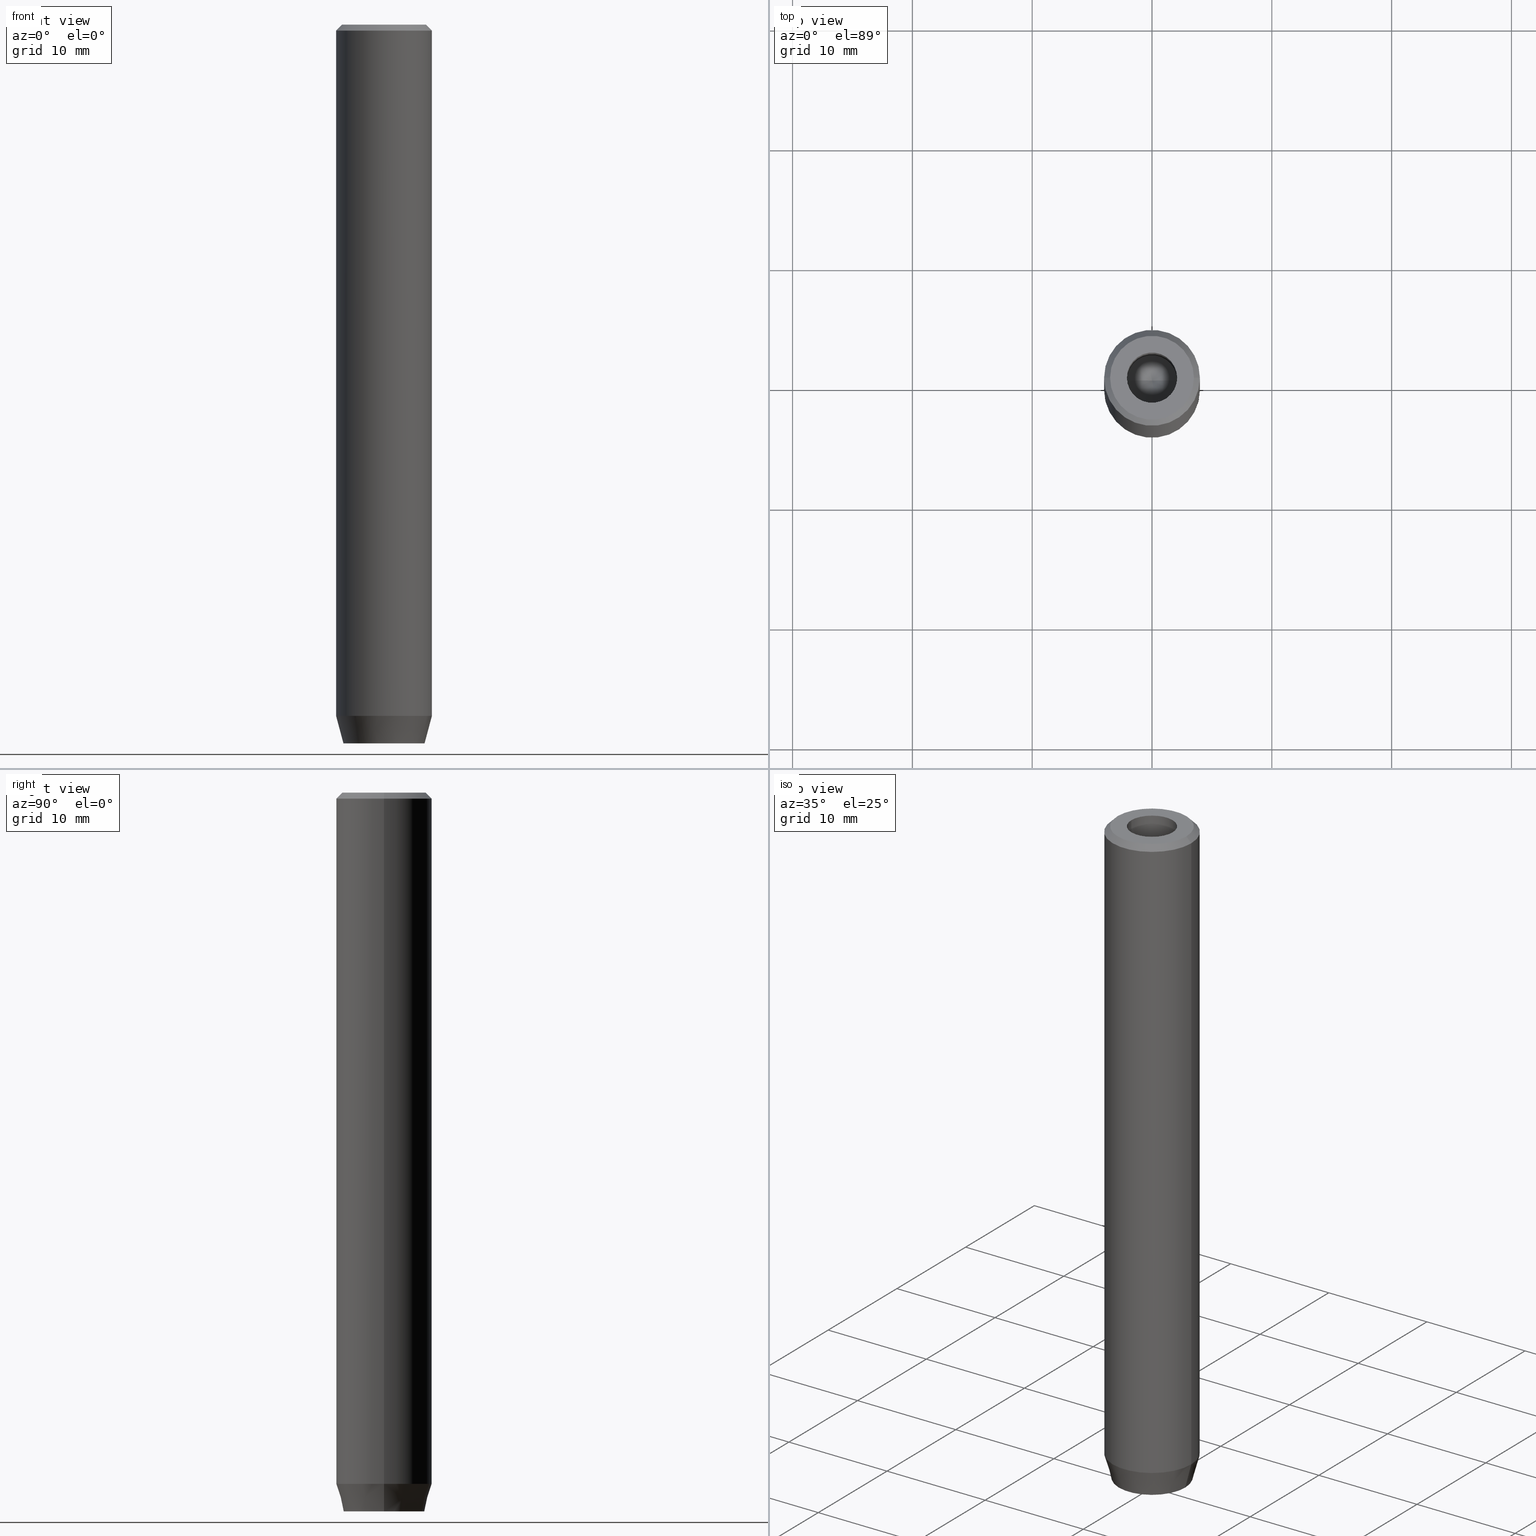
[diagram: canonical four-view strip — front | top / right | iso, engineering-drawing reading convention]
A machine part, canonical four-view strip (front | top / right | iso — engineering-drawing reading convention). The complete STEP part file that produces these views, byte-faithful:
ISO-10303-21;
HEADER;
FILE_DESCRIPTION (( 'STEP AP203' ),
    '1' );
FILE_NAME ('21f6.STEP',
    '2024-01-02T23:09:26',
    ( '' ),
    ( '' ),
    'SwSTEP 2.0',
    'SolidWorks 2019',
    '' );
FILE_SCHEMA (( 'CONFIG_CONTROL_DESIGN' ));
ENDSEC;

DATA;
#1 = CARTESIAN_POINT ( 'NONE',  ( -3.370670652075219192E-15, 0.000000000000000000, -13.76180729995787644 ) ) ;
#2 = APPROVAL_DATE_TIME ( #226, #495 ) ;
#3 = ADVANCED_FACE ( 'NONE', ( #320 ), #145, .T. ) ;
#4 = PRODUCT ( '21f6', '21f6', '', ( #101 ) ) ;
#5 = ORIENTED_EDGE ( 'NONE', *, *, #276, .T. ) ;
#6 = CALENDAR_DATE ( 2024, 3, 1 ) ;
#7 = VECTOR ( 'NONE', #229, 1000.000000000000000 ) ;
#8 = LINE ( 'NONE', #192, #59 ) ;
#9 = EDGE_CURVE ( 'NONE', #119, #16, #488, .T. ) ;
#10 = CC_DESIGN_PERSON_AND_ORGANIZATION_ASSIGNMENT ( #443, #585, ( #306 ) ) ;
#11 = DIRECTION ( 'NONE',  ( -0.000000000000000000, -0.000000000000000000, -1.000000000000000000 ) ) ;
#12 = CARTESIAN_POINT ( 'NONE',  ( 2.000000000000000888, 0.000000000000000000, -57.20000000000000284 ) ) ;
#13 = DIRECTION ( 'NONE',  ( -0.5000000000000001110, 0.8660254037844385966, 0.000000000000000000 ) ) ;
#14 = CARTESIAN_POINT ( 'NONE',  ( 2.168404344971008868E-16, -2.309401076758503812, -60.00000000000000000 ) ) ;
#15 = DIRECTION ( 'NONE',  ( 0.000000000000000000, 0.000000000000000000, -1.000000000000000000 ) ) ;
#16 = VERTEX_POINT ( 'NONE', #87 ) ;
#17 = DIRECTION ( 'NONE',  ( -0.000000000000000000, 0.000000000000000000, -1.000000000000000000 ) ) ;
#18 = ORIENTED_EDGE ( 'NONE', *, *, #237, .F. ) ;
#19 = DIRECTION ( 'NONE',  ( -0.000000000000000000, -0.000000000000000000, 1.000000000000000000 ) ) ;
#20 = EDGE_LOOP ( 'NONE', ( #305, #250, #76, #85 ) ) ;
#21 = APPROVAL_ROLE ( '' ) ;
#22 = CIRCLE ( 'NONE', #309, 3.500000000000003109 ) ;
#23 = EDGE_CURVE ( 'NONE', #383, #32, #179, .T. ) ;
#24 = CARTESIAN_POINT ( 'NONE',  ( 0.000000000000000000, 0.000000000000000000, -57.70000000000000284 ) ) ;
#25 = VERTEX_POINT ( 'NONE', #553 ) ;
#26 = ORIENTED_EDGE ( 'NONE', *, *, #53, .T. ) ;
#27 = FACE_OUTER_BOUND ( 'NONE', #395, .T. ) ;
#28 = DIRECTION ( 'NONE',  ( -0.000000000000000000, -0.000000000000000000, 1.000000000000000000 ) ) ;
#29 = ADVANCED_FACE ( 'NONE', ( #451 ), #147, .T. ) ;
#30 = DIRECTION ( 'NONE',  ( 1.000000000000000000, 0.000000000000000000, 0.000000000000000000 ) ) ;
#31 = ORIENTED_EDGE ( 'NONE', *, *, #537, .F. ) ;
#32 = VERTEX_POINT ( 'NONE', #38 ) ;
#33 = VECTOR ( 'NONE', #514, 1000.000000000000114 ) ;
#34 = CARTESIAN_POINT ( 'NONE',  ( 0.000000000000000000, 0.000000000000000000, 0.000000000000000000 ) ) ;
#35 = EDGE_LOOP ( 'NONE', ( #233, #417, #265, #441 ) ) ;
#36 = CARTESIAN_POINT ( 'NONE',  ( -2.099999999999998757, 2.571758278209439985E-16, -1.990051048614449116E-16 ) ) ;
#37 = ORIENTED_EDGE ( 'NONE', *, *, #158, .F. ) ;
#38 = CARTESIAN_POINT ( 'NONE',  ( 2.099999999999996980, 0.000000000000000000, -12.50000000000000000 ) ) ;
#39 = AXIS2_PLACEMENT_3D ( 'NONE', #246, #457, #293 ) ;
#40 = VERTEX_POINT ( 'NONE', #1 ) ;
#41 = PLANE ( 'NONE',  #362 ) ;
#42 = ORIENTED_EDGE ( 'NONE', *, *, #505, .T. ) ;
#43 = DIRECTION ( 'NONE',  ( -0.000000000000000000, -0.000000000000000000, 1.000000000000000000 ) ) ;
#44 = CC_DESIGN_PERSON_AND_ORGANIZATION_ASSIGNMENT ( #277, #216, ( #468 ) ) ;
#45 = CARTESIAN_POINT ( 'NONE',  ( -3.500000000000003109, 0.000000000000000000, 0.000000000000000000 ) ) ;
#46 = COORDINATED_UNIVERSAL_TIME_OFFSET ( 1, 0, .AHEAD. ) ;
#47 = FACE_OUTER_BOUND ( 'NONE', #146, .T. ) ;
#48 = DIRECTION ( 'NONE',  ( 1.000000000000000000, 0.000000000000000000, 0.000000000000000000 ) ) ;
#49 = PLANE ( 'NONE',  #352 ) ;
#50 = EDGE_CURVE ( 'NONE', #269, #63, #316, .T. ) ;
#51 = DIRECTION ( 'NONE',  ( -0.000000000000000000, -0.000000000000000000, -1.000000000000000000 ) ) ;
#52 = VECTOR ( 'NONE', #485, 999.9999999999998863 ) ;
#53 = EDGE_CURVE ( 'NONE', #254, #139, #283, .T. ) ;
#54 = DIRECTION ( 'NONE',  ( -0.8571673007021116675, 1.049727191138617833E-16, 0.5150380749100552658 ) ) ;
#55 = CARTESIAN_POINT ( 'NONE',  ( 0.000000000000000000, 0.000000000000000000, -0.4999999999999970024 ) ) ;
#56 = COORDINATED_UNIVERSAL_TIME_OFFSET ( 1, 0, .AHEAD. ) ;
#57 = DIRECTION ( 'NONE',  ( 0.8660254037844388186, 0.4999999999999996669, 0.000000000000000000 ) ) ;
#58 = EDGE_LOOP ( 'NONE', ( #116, #481, #153 ) ) ;
#59 = VECTOR ( 'NONE', #392, 1000.000000000000000 ) ;
#60 = EDGE_CURVE ( 'NONE', #420, #63, #325, .T. ) ;
#61 = VERTEX_POINT ( 'NONE', #45 ) ;
#62 = CARTESIAN_POINT ( 'NONE',  ( 0.000000000000000000, 0.000000000000000000, -60.00000000000000000 ) ) ;
#63 = VERTEX_POINT ( 'NONE', #508 ) ;
#64 = ADVANCED_FACE ( 'NONE', ( #98 ), #548, .F. ) ;
#65 = CARTESIAN_POINT ( 'NONE',  ( 0.000000000000000000, 3.383716857408417766, -60.00000000000000000 ) ) ;
#66 = ORIENTED_EDGE ( 'NONE', *, *, #154, .F. ) ;
#67 = EDGE_LOOP ( 'NONE', ( #359, #435, #66, #334 ) ) ;
#68 = VECTOR ( 'NONE', #447, 1000.000000000000000 ) ;
#69 = EDGE_CURVE ( 'NONE', #119, #385, #159, .T. ) ;
#70 = ORGANIZATION ( 'NEUR�EN�', 'NEUR�EN�', '' ) ;
#71 = CARTESIAN_POINT ( 'NONE',  ( 0.000000000000000000, 0.000000000000000000, -57.70000000000000284 ) ) ;
#72 = DIRECTION ( 'NONE',  ( -0.000000000000000000, -0.000000000000000000, 1.000000000000000000 ) ) ;
#73 = ORIENTED_EDGE ( 'NONE', *, *, #530, .F. ) ;
#74 = DIRECTION ( 'NONE',  ( 1.000000000000000000, 0.000000000000000000, 0.000000000000000000 ) ) ;
#75 = ADVANCED_FACE ( 'NONE', ( #372 ), #337, .F. ) ;
#76 = ORIENTED_EDGE ( 'NONE', *, *, #291, .F. ) ;
#77 = DIRECTION ( 'NONE',  ( -0.000000000000000000, -0.000000000000000000, 1.000000000000000000 ) ) ;
#78 = VECTOR ( 'NONE', #298, 1000.000000000000000 ) ;
#79 = CIRCLE ( 'NONE', #39, 2.099999999999998757 ) ;
#80 = VERTEX_POINT ( 'NONE', #239 ) ;
#81 = DATE_TIME_ROLE ( 'creation_date' ) ;
#82 = EDGE_CURVE ( 'NONE', #16, #119, #232, .T. ) ;
#83 = DIRECTION ( 'NONE',  ( -0.7071067811865474617, 0.000000000000000000, -0.7071067811865474617 ) ) ;
#84 = DIRECTION ( 'NONE',  ( 1.000000000000000000, 0.000000000000000000, 0.000000000000000000 ) ) ;
#85 = ORIENTED_EDGE ( 'NONE', *, *, #188, .F. ) ;
#86 = EDGE_CURVE ( 'NONE', #464, #182, #161, .T. ) ;
#87 = CARTESIAN_POINT ( 'NONE',  ( 3.383716857408417766, 0.000000000000000000, -60.00000000000000000 ) ) ;
#88 = VECTOR ( 'NONE', #539, 1000.000000000000000 ) ;
#89 = DIRECTION ( 'NONE',  ( -0.000000000000000000, -0.000000000000000000, -1.000000000000000000 ) ) ;
#90 = FACE_OUTER_BOUND ( 'NONE', #128, .T. ) ;
#91 = PERSON_AND_ORGANIZATION_ROLE ( 'creator' ) ;
#92 = ADVANCED_FACE ( 'NONE', ( #244 ), #415, .F. ) ;
#93 = DIRECTION ( 'NONE',  ( -0.000000000000000000, -0.000000000000000000, 1.000000000000000000 ) ) ;
#94 = DATE_TIME_ROLE ( 'classification_date' ) ;
#95 = CARTESIAN_POINT ( 'NONE',  ( 2.000000000000000888, -1.154700538379252572, -57.20000000000000284 ) ) ;
#96 = VERTEX_POINT ( 'NONE', #470 ) ;
#97 = AXIS2_PLACEMENT_3D ( 'NONE', #399, #546, #405 ) ;
#98 = FACE_OUTER_BOUND ( 'NONE', #58, .T. ) ;
#99 = CIRCLE ( 'NONE', #367, 2.099999999999998757 ) ;
#100 = VECTOR ( 'NONE', #183, 1000.000000000000000 ) ;
#101 = MECHANICAL_CONTEXT ( 'NONE', #163, 'mechanical' ) ;
#102 = DIRECTION ( 'NONE',  ( 0.8660254037844385966, -0.4999999999999999445, 0.000000000000000000 ) ) ;
#103 = ORIENTED_EDGE ( 'NONE', *, *, #344, .F. ) ;
#104 = EDGE_CURVE ( 'NONE', #541, #480, #369, .T. ) ;
#105 = CARTESIAN_POINT ( 'NONE',  ( -4.000000000000000000, 4.898587196589412829E-16, -57.70000000000000284 ) ) ;
#106 = FACE_OUTER_BOUND ( 'NONE', #363, .T. ) ;
#107 = EDGE_LOOP ( 'NONE', ( #572, #423, #584, #528 ) ) ;
#108 = VECTOR ( 'NONE', #205, 1000.000000000000000 ) ;
#109 = CARTESIAN_POINT ( 'NONE',  ( 0.9999999999999997780, -1.732050807568878747, -57.20000000000000284 ) ) ;
#110 = AXIS2_PLACEMENT_3D ( 'NONE', #409, #13, #290 ) ;
#111 = LOCAL_TIME ( 0, 9, 26.00000000000000000, #184 ) ;
#112 = DIRECTION ( 'NONE',  ( 1.000000000000000000, 0.000000000000000000, 0.000000000000000000 ) ) ;
#113 = ORIENTED_EDGE ( 'NONE', *, *, #458, .T. ) ;
#114 = DIRECTION ( 'NONE',  ( 0.8660254037844385966, 0.5000000000000001110, 0.000000000000000000 ) ) ;
#115 = CARTESIAN_POINT ( 'NONE',  ( 4.000000000000000000, 0.000000000000000000, -57.70000000000000284 ) ) ;
#116 = ORIENTED_EDGE ( 'NONE', *, *, #505, .F. ) ;
#117 = COORDINATED_UNIVERSAL_TIME_OFFSET ( 1, 0, .AHEAD. ) ;
#118 = EDGE_CURVE ( 'NONE', #471, #182, #268, .T. ) ;
#119 = VERTEX_POINT ( 'NONE', #272 ) ;
#120 = CARTESIAN_POINT ( 'NONE',  ( 1.000000000000000444, 1.732050807568877637, -60.00000000000000000 ) ) ;
#121 = APPLICATION_PROTOCOL_DEFINITION ( 'international standard', 'config_control_design', 1994, #401 ) ;
#122 = FACE_OUTER_BOUND ( 'NONE', #245, .T. ) ;
#123 = CONICAL_SURFACE ( 'NONE', #444, 4.000000000000000000, 0.2617993877991497964 ) ;
#124 = ORIENTED_EDGE ( 'NONE', *, *, #463, .T. ) ;
#125 = CARTESIAN_POINT ( 'NONE',  ( -1.000000000000000222, -1.732050807568877637, -60.00000000000000000 ) ) ;
#126 = LINE ( 'NONE', #388, #532 ) ;
#127 = EDGE_CURVE ( 'NONE', #80, #61, #489, .T. ) ;
#128 = EDGE_LOOP ( 'NONE', ( #520, #42, #474 ) ) ;
#129 = PLANE ( 'NONE',  #264 ) ;
#130 = VECTOR ( 'NONE', #11, 1000.000000000000000 ) ;
#131 = VECTOR ( 'NONE', #83, 1000.000000000000114 ) ;
#132 = ORIENTED_EDGE ( 'NONE', *, *, #344, .T. ) ;
#133 = DATE_AND_TIME ( #308, #111 ) ;
#134 = CARTESIAN_POINT ( 'NONE',  ( 1.000000000000000444, 1.732050807568877637, -57.20000000000000284 ) ) ;
#135 = CARTESIAN_POINT ( 'NONE',  ( 1.000000000000000444, 1.732050807568877637, -57.20000000000000284 ) ) ;
#136 = CARTESIAN_POINT ( 'NONE',  ( 0.000000000000000000, 0.000000000000000000, -12.50000000000000000 ) ) ;
#137 = DIRECTION ( 'NONE',  ( 0.5000000000000001110, 0.8660254037844385966, -0.000000000000000000 ) ) ;
#138 = CC_DESIGN_DATE_AND_TIME_ASSIGNMENT ( #156, #94, ( #404 ) ) ;
#139 = VERTEX_POINT ( 'NONE', #348 ) ;
#140 = APPROVAL_ROLE ( '' ) ;
#141 = LINE ( 'NONE', #275, #455 ) ;
#142 = CONICAL_SURFACE ( 'NONE', #425, 3.500000000000003109, 0.7853981633974482790 ) ;
#143 = CONICAL_SURFACE ( 'NONE', #191, 4.000000000000000000, 0.2617993877991497964 ) ;
#144 = FACE_OUTER_BOUND ( 'NONE', #432, .T. ) ;
#145 = CYLINDRICAL_SURFACE ( 'NONE', #351, 4.000000000000000000 ) ;
#146 = EDGE_LOOP ( 'NONE', ( #5, #208, #341, #525, #484, #581 ) ) ;
#147 = CYLINDRICAL_SURFACE ( 'NONE', #386, 4.000000000000000000 ) ;
#148 = PERSON_AND_ORGANIZATION ( #278, #70 ) ;
#149 = APPLICATION_PROTOCOL_DEFINITION ( 'international standard', 'config_control_design', 1994, #163 ) ;
#150 = CIRCLE ( 'NONE', #206, 4.000000000000000000 ) ;
#151 = DIRECTION ( 'NONE',  ( -0.8660254037844388186, -0.4999999999999996114, 0.000000000000000000 ) ) ;
#152 = EDGE_LOOP ( 'NONE', ( #210, #559, #242, #302 ) ) ;
#153 = ORIENTED_EDGE ( 'NONE', *, *, #23, .T. ) ;
#154 = EDGE_CURVE ( 'NONE', #420, #254, #299, .T. ) ;
#155 = FACE_OUTER_BOUND ( 'NONE', #231, .T. ) ;
#156 = DATE_AND_TIME ( #240, #413 ) ;
#157 =( NAMED_UNIT ( * ) SI_UNIT ( $, .STERADIAN. ) SOLID_ANGLE_UNIT ( ) );
#158 = EDGE_CURVE ( 'NONE', #25, #492, #99, .T. ) ;
#159 = LINE ( 'NONE', #105, #33 ) ;
#160 = EDGE_LOOP ( 'NONE', ( #37, #350 ) ) ;
#161 = CIRCLE ( 'NONE', #221, 4.000000000000000000 ) ;
#162 = ORIENTED_EDGE ( 'NONE', *, *, #340, .F. ) ;
#163 = APPLICATION_CONTEXT ( 'configuration controlled 3d designs of mechanical parts and assemblies' ) ;
#164 = DIRECTION ( 'NONE',  ( 1.000000000000000000, 0.000000000000000000, 0.000000000000000000 ) ) ;
#165 = EDGE_CURVE ( 'NONE', #322, #269, #396, .T. ) ;
#166 = ORIENTED_EDGE ( 'NONE', *, *, #86, .F. ) ;
#167 = EDGE_LOOP ( 'NONE', ( #18, #570, #113, #103 ) ) ;
#168 = ORIENTED_EDGE ( 'NONE', *, *, #127, .T. ) ;
#169 = EDGE_CURVE ( 'NONE', #480, #560, #196, .T. ) ;
#170 = AXIS2_PLACEMENT_3D ( 'NONE', #251, #433, #30 ) ;
#171 = ORIENTED_EDGE ( 'NONE', *, *, #237, .T. ) ;
#172 = ADVANCED_FACE ( 'NONE', ( #557 ), #142, .T. ) ;
#173 = ORIENTED_EDGE ( 'NONE', *, *, #118, .F. ) ;
#174 = DIRECTION ( 'NONE',  ( 1.000000000000000000, 0.000000000000000000, 0.000000000000000000 ) ) ;
#175 = ADVANCED_FACE ( 'NONE', ( #90 ), #512, .F. ) ;
#176 = EDGE_LOOP ( 'NONE', ( #461, #379, #397, #173 ) ) ;
#177 = PERSON_AND_ORGANIZATION ( #278, #70 ) ;
#178 = FACE_OUTER_BOUND ( 'NONE', #67, .T. ) ;
#179 = CIRCLE ( 'NONE', #579, 2.099999999999996980 ) ;
#180 = DIRECTION ( 'NONE',  ( 0.8660254037844385966, -0.5000000000000001110, 0.000000000000000000 ) ) ;
#181 = AXIS2_PLACEMENT_3D ( 'NONE', #294, #72, #164 ) ;
#182 = VERTEX_POINT ( 'NONE', #469 ) ;
#183 = DIRECTION ( 'NONE',  ( 5.633679745264339711E-16, 1.000000000000000000, 0.000000000000000000 ) ) ;
#184 = COORDINATED_UNIVERSAL_TIME_OFFSET ( 1, 0, .AHEAD. ) ;
#185 = CARTESIAN_POINT ( 'NONE',  ( 2.168404344971008868E-16, -2.309401076758503812, -57.20000000000000284 ) ) ;
#186 = CARTESIAN_POINT ( 'NONE',  ( 0.000000000000000000, 0.000000000000000000, 0.000000000000000000 ) ) ;
#187 = CARTESIAN_POINT ( 'NONE',  ( 0.000000000000000000, 0.000000000000000000, -12.50000000000000000 ) ) ;
#188 = EDGE_CURVE ( 'NONE', #16, #471, #211, .T. ) ;
#189 = CONICAL_SURFACE ( 'NONE', #564, 3.500000000000003109, 0.7853981633974482790 ) ;
#190 = ORIENTED_EDGE ( 'NONE', *, *, #537, .T. ) ;
#191 = AXIS2_PLACEMENT_3D ( 'NONE', #317, #353, #357 ) ;
#192 = CARTESIAN_POINT ( 'NONE',  ( 2.099999999999996980, 0.000000000000000000, -12.50000000000000000 ) ) ;
#193 = DIRECTION ( 'NONE',  ( 1.000000000000000000, 0.000000000000000000, 0.000000000000000000 ) ) ;
#194 = CARTESIAN_POINT ( 'NONE',  ( 2.000000000000000888, -1.154700538379252572, -60.00000000000000000 ) ) ;
#195 = LINE ( 'NONE', #510, #253 ) ;
#196 = LINE ( 'NONE', #407, #130 ) ;
#197 = DIRECTION ( 'NONE',  ( 1.000000000000000000, 0.000000000000000000, 0.000000000000000000 ) ) ;
#198 = VECTOR ( 'NONE', #419, 1000.000000000000114 ) ;
#199 =( GEOMETRIC_REPRESENTATION_CONTEXT ( 3 ) GLOBAL_UNCERTAINTY_ASSIGNED_CONTEXT ( ( #286 ) ) GLOBAL_UNIT_ASSIGNED_CONTEXT ( ( #236, #452, #157 ) ) REPRESENTATION_CONTEXT ( 'NONE', 'WORKASPACE' ) );
#200 = CARTESIAN_POINT ( 'NONE',  ( -1.999999999999998668, -1.154700538379252572, -57.20000000000000284 ) ) ;
#201 = DIRECTION ( 'NONE',  ( -1.000000000000000000, 0.000000000000000000, 0.000000000000000000 ) ) ;
#202 = LINE ( 'NONE', #287, #582 ) ;
#203 = CARTESIAN_POINT ( 'NONE',  ( 2.000000000000000888, 1.154700538379251462, -57.20000000000000284 ) ) ;
#204 = ORIENTED_EDGE ( 'NONE', *, *, #23, .F. ) ;
#205 = DIRECTION ( 'NONE',  ( -0.000000000000000000, -0.000000000000000000, -1.000000000000000000 ) ) ;
#206 = AXIS2_PLACEMENT_3D ( 'NONE', #519, #28, #257 ) ;
#207 = VECTOR ( 'NONE', #151, 1000.000000000000114 ) ;
#208 = ORIENTED_EDGE ( 'NONE', *, *, #154, .T. ) ;
#209 = LINE ( 'NONE', #125, #52 ) ;
#210 = ORIENTED_EDGE ( 'NONE', *, *, #340, .T. ) ;
#211 = LINE ( 'NONE', #115, #252 ) ;
#212 = ORIENTED_EDGE ( 'NONE', *, *, #127, .F. ) ;
#213 = CC_DESIGN_PERSON_AND_ORGANIZATION_ASSIGNMENT ( #177, #509, ( #404 ) ) ;
#214 = VECTOR ( 'NONE', #551, 1000.000000000000000 ) ;
#215 = CC_DESIGN_SECURITY_CLASSIFICATION ( #404, ( #468 ) ) ;
#216 = PERSON_AND_ORGANIZATION_ROLE ( 'design_supplier' ) ;
#217 = DIRECTION ( 'NONE',  ( 1.000000000000000000, 0.000000000000000000, 0.000000000000000000 ) ) ;
#218 = EDGE_CURVE ( 'NONE', #385, #471, #150, .T. ) ;
#219 = ADVANCED_FACE ( 'NONE', ( #155 ), #123, .T. ) ;
#220 = CARTESIAN_POINT ( 'NONE',  ( -3.500000000000003109, 0.000000000000000000, 0.000000000000000000 ) ) ;
#221 = AXIS2_PLACEMENT_3D ( 'NONE', #55, #238, #248 ) ;
#222 = ORIENTED_EDGE ( 'NONE', *, *, #273, .T. ) ;
#223 = CARTESIAN_POINT ( 'NONE',  ( 2.099999999999997868, 0.000000000000000000, 0.000000000000000000 ) ) ;
#224 = ORIENTED_EDGE ( 'NONE', *, *, #50, .F. ) ;
#225 = CARTESIAN_POINT ( 'NONE',  ( -1.999999999999998224, 1.126735949052866956E-15, -60.00000000000000000 ) ) ;
#226 = DATE_AND_TIME ( #538, #387 ) ;
#227 = DIRECTION ( 'NONE',  ( -0.000000000000000000, -0.000000000000000000, 1.000000000000000000 ) ) ;
#228 = CARTESIAN_POINT ( 'NONE',  ( 2.000000000000000888, 1.154700538379251462, -57.20000000000000284 ) ) ;
#229 = DIRECTION ( 'NONE',  ( -0.000000000000000000, -0.000000000000000000, -1.000000000000000000 ) ) ;
#230 = ADVANCED_FACE ( 'NONE', ( #473, #106 ), #421, .T. ) ;
#231 = EDGE_LOOP ( 'NONE', ( #297, #376, #563, #358 ) ) ;
#232 = CIRCLE ( 'NONE', #403, 3.383716857408417766 ) ;
#233 = ORIENTED_EDGE ( 'NONE', *, *, #535, .F. ) ;
#234 = CARTESIAN_POINT ( 'NONE',  ( 0.000000000000000000, 0.000000000000000000, 0.000000000000000000 ) ) ;
#235 = MANIFOLD_SOLID_BREP ( 'Vrt�k z�vitn�ku pro M5 z�vit1', #424 ) ;
#236 =( LENGTH_UNIT ( ) NAMED_UNIT ( * ) SI_UNIT ( .MILLI., .METRE. ) );
#237 = EDGE_CURVE ( 'NONE', #80, #182, #243, .T. ) ;
#238 = DIRECTION ( 'NONE',  ( 0.000000000000000000, 0.000000000000000000, -1.000000000000000000 ) ) ;
#239 = CARTESIAN_POINT ( 'NONE',  ( 3.500000000000003109, 4.592425496802575944E-16, 0.000000000000000000 ) ) ;
#240 = CALENDAR_DATE ( 2024, 3, 1 ) ;
#241 = VECTOR ( 'NONE', #321, 999.9999999999998863 ) ;
#242 = ORIENTED_EDGE ( 'NONE', *, *, #393, .F. ) ;
#243 = LINE ( 'NONE', #336, #198 ) ;
#244 = FACE_OUTER_BOUND ( 'NONE', #107, .T. ) ;
#245 = EDGE_LOOP ( 'NONE', ( #381, #427, #515, #124 ) ) ;
#246 = CARTESIAN_POINT ( 'NONE',  ( 0.000000000000000000, 0.000000000000000000, -1.990051048614449116E-16 ) ) ;
#247 = ORIENTED_EDGE ( 'NONE', *, *, #490, .F. ) ;
#248 = DIRECTION ( 'NONE',  ( 1.000000000000000000, 0.000000000000000000, 0.000000000000000000 ) ) ;
#249 = APPROVAL_STATUS ( 'not_yet_approved' ) ;
#250 = ORIENTED_EDGE ( 'NONE', *, *, #69, .T. ) ;
#251 = CARTESIAN_POINT ( 'NONE',  ( 0.000000000000000000, 0.000000000000000000, 0.000000000000000000 ) ) ;
#252 = VECTOR ( 'NONE', #428, 1000.000000000000114 ) ;
#253 = VECTOR ( 'NONE', #54, 1000.000000000000000 ) ;
#254 = VERTEX_POINT ( 'NONE', #203 ) ;
#255 = ORIENTED_EDGE ( 'NONE', *, *, #436, .F. ) ;
#256 = DIRECTION ( 'NONE',  ( -5.633679745264339711E-16, -1.000000000000000000, 0.000000000000000000 ) ) ;
#257 = DIRECTION ( 'NONE',  ( 1.000000000000000000, 0.000000000000000000, 0.000000000000000000 ) ) ;
#258 = ORIENTED_EDGE ( 'NONE', *, *, #218, .T. ) ;
#259 = LINE ( 'NONE', #271, #241 ) ;
#260 = ORIENTED_EDGE ( 'NONE', *, *, #356, .F. ) ;
#261 = ORIENTED_EDGE ( 'NONE', *, *, #524, .T. ) ;
#262 = CIRCLE ( 'NONE', #478, 4.000000000000000000 ) ;
#263 = CARTESIAN_POINT ( 'NONE',  ( 0.000000000000000000, 0.000000000000000000, -0.4999999999999970024 ) ) ;
#264 = AXIS2_PLACEMENT_3D ( 'NONE', #310, #583, #545 ) ;
#265 = ORIENTED_EDGE ( 'NONE', *, *, #436, .T. ) ;
#266 = CARTESIAN_POINT ( 'NONE',  ( -4.000000000000000000, 4.898587196589412829E-16, -0.4999999999999970024 ) ) ;
#267 = LINE ( 'NONE', #220, #131 ) ;
#268 = LINE ( 'NONE', #315, #574 ) ;
#269 = VERTEX_POINT ( 'NONE', #375 ) ;
#270 = APPROVAL_DATE_TIME ( #497, #318 ) ;
#271 = CARTESIAN_POINT ( 'NONE',  ( -1.000000000000000222, -1.732050807568877637, -57.20000000000000284 ) ) ;
#272 = CARTESIAN_POINT ( 'NONE',  ( -3.383716857408417766, 4.521222607617785469E-16, -60.00000000000000000 ) ) ;
#273 = EDGE_CURVE ( 'NONE', #541, #526, #562, .T. ) ;
#274 = CARTESIAN_POINT ( 'NONE',  ( -1.000000000000000444, 1.732050807568877637, -60.00000000000000000 ) ) ;
#275 = CARTESIAN_POINT ( 'NONE',  ( -4.000000000000000000, 4.898587196589412829E-16, 0.000000000000000000 ) ) ;
#276 = EDGE_CURVE ( 'NONE', #96, #420, #126, .T. ) ;
#277 = PERSON_AND_ORGANIZATION ( #278, #70 ) ;
#278 = PERSON ( 'NEUR�EN�', 'NEUR�EN�', 'NEUR�EN�', ('NEUR�EN�'), ('NEUR�EN�'), ('NEUR�EN�') ) ;
#279 = DIRECTION ( 'NONE',  ( 1.000000000000000000, 0.000000000000000000, 0.000000000000000000 ) ) ;
#280 = ORIENTED_EDGE ( 'NONE', *, *, #273, .F. ) ;
#281 = VECTOR ( 'NONE', #51, 1000.000000000000000 ) ;
#282 = VECTOR ( 'NONE', #324, 1000.000000000000000 ) ;
#283 = LINE ( 'NONE', #228, #68 ) ;
#284 = CARTESIAN_POINT ( 'NONE',  ( 0.9999999999999997780, -1.732050807568878747, -60.00000000000000000 ) ) ;
#285 = ADVANCED_FACE ( 'NONE', ( #27 ), #189, .T. ) ;
#286 = UNCERTAINTY_MEASURE_WITH_UNIT (LENGTH_MEASURE( 1.000000000000000082E-05 ), #236, 'distance_accuracy_value', 'NONE');
#287 = CARTESIAN_POINT ( 'NONE',  ( 2.000000000000000888, 0.000000000000000000, -60.00000000000000000 ) ) ;
#288 = LINE ( 'NONE', #373, #282 ) ;
#289 = DIRECTION ( 'NONE',  ( -1.000000000000000000, 0.000000000000000000, -0.000000000000000000 ) ) ;
#290 = DIRECTION ( 'NONE',  ( -0.8660254037844385966, -0.5000000000000001110, 0.000000000000000000 ) ) ;
#291 = EDGE_CURVE ( 'NONE', #471, #385, #262, .T. ) ;
#292 = VECTOR ( 'NONE', #568, 1000.000000000000114 ) ;
#293 = DIRECTION ( 'NONE',  ( 1.000000000000000000, 0.000000000000000000, 0.000000000000000000 ) ) ;
#294 = CARTESIAN_POINT ( 'NONE',  ( 0.000000000000000000, 0.000000000000000000, -12.50000000000000000 ) ) ;
#295 = EDGE_LOOP ( 'NONE', ( #204, #472, #486, #255 ) ) ;
#296 = FACE_OUTER_BOUND ( 'NONE', #35, .T. ) ;
#297 = ORIENTED_EDGE ( 'NONE', *, *, #69, .F. ) ;
#298 = DIRECTION ( 'NONE',  ( 0.8660254037844385966, -0.5000000000000001110, 0.000000000000000000 ) ) ;
#299 = LINE ( 'NONE', #135, #300 ) ;
#300 = VECTOR ( 'NONE', #180, 1000.000000000000000 ) ;
#301 = CYLINDRICAL_SURFACE ( 'NONE', #499, 2.099999999999997868 ) ;
#302 = ORIENTED_EDGE ( 'NONE', *, *, #169, .T. ) ;
#303 = CYLINDRICAL_SURFACE ( 'NONE', #170, 2.099999999999997868 ) ;
#304 = CARTESIAN_POINT ( 'NONE',  ( 0.000000000000000000, 0.000000000000000000, 0.000000000000000000 ) ) ;
#305 = ORIENTED_EDGE ( 'NONE', *, *, #82, .T. ) ;
#306 = PRODUCT_DEFINITION ( 'NEZN�M�', '', #468, #531 ) ;
#307 = EDGE_LOOP ( 'NONE', ( #261, #280, #73, #26 ) ) ;
#308 = CALENDAR_DATE ( 2024, 3, 1 ) ;
#309 = AXIS2_PLACEMENT_3D ( 'NONE', #34, #475, #217 ) ;
#310 = CARTESIAN_POINT ( 'NONE',  ( 0.000000000000000000, 0.000000000000000000, 0.000000000000000000 ) ) ;
#311 = AXIS2_PLACEMENT_3D ( 'NONE', #234, #406, #366 ) ;
#312 = DIRECTION ( 'NONE',  ( 0.000000000000000000, 0.000000000000000000, -1.000000000000000000 ) ) ;
#313 = ORIENTED_EDGE ( 'NONE', *, *, #165, .F. ) ;
#314 = DIRECTION ( 'NONE',  ( -0.8660254037844385966, 0.5000000000000001110, 0.000000000000000000 ) ) ;
#315 = CARTESIAN_POINT ( 'NONE',  ( 4.000000000000000000, 0.000000000000000000, 0.000000000000000000 ) ) ;
#316 = LINE ( 'NONE', #274, #214 ) ;
#317 = CARTESIAN_POINT ( 'NONE',  ( 0.000000000000000000, 0.000000000000000000, -57.70000000000000284 ) ) ;
#318 = APPROVAL ( #249, 'NEUR�EN�' ) ;
#319 = CC_DESIGN_APPROVAL ( #374, ( #404 ) ) ;
#320 = FACE_OUTER_BOUND ( 'NONE', #176, .T. ) ;
#321 = DIRECTION ( 'NONE',  ( -0.8660254037844387076, 0.5000000000000001110, 0.000000000000000000 ) ) ;
#322 = VERTEX_POINT ( 'NONE', #534 ) ;
#323 = ADVANCED_FACE ( 'NONE', ( #296 ), #303, .F. ) ;
#324 = DIRECTION ( 'NONE',  ( 0.000000000000000000, -1.000000000000000000, 0.000000000000000000 ) ) ;
#325 = LINE ( 'NONE', #506, #281 ) ;
#326 = EDGE_CURVE ( 'NONE', #61, #80, #22, .T. ) ;
#327 = CARTESIAN_POINT ( 'NONE',  ( -2.099999999999997868, 2.571758278209438999E-16, 0.000000000000000000 ) ) ;
#328 = AXIS2_PLACEMENT_3D ( 'NONE', #187, #500, #279 ) ;
#329 = ORIENTED_EDGE ( 'NONE', *, *, #458, .F. ) ;
#330 = PLANE ( 'NONE',  #542 ) ;
#331 = DIRECTION ( 'NONE',  ( 1.000000000000000000, 0.000000000000000000, 0.000000000000000000 ) ) ;
#332 = APPROVAL_STATUS ( 'not_yet_approved' ) ;
#333 = EDGE_LOOP ( 'NONE', ( #247, #258, #422, #132 ) ) ;
#334 = ORIENTED_EDGE ( 'NONE', *, *, #60, .T. ) ;
#335 = CIRCLE ( 'NONE', #412, 4.000000000000000000 ) ;
#336 = CARTESIAN_POINT ( 'NONE',  ( 3.500000000000003109, 4.286263797015740046E-16, 0.000000000000000000 ) ) ;
#337 = PLANE ( 'NONE',  #346 ) ;
#338 = AXIS2_PLACEMENT_3D ( 'NONE', #134, #137, #314 ) ;
#339 = ORIENTED_EDGE ( 'NONE', *, *, #9, .F. ) ;
#340 = EDGE_CURVE ( 'NONE', #560, #322, #209, .T. ) ;
#341 = ORIENTED_EDGE ( 'NONE', *, *, #530, .T. ) ;
#342 = DIRECTION ( 'NONE',  ( 1.000000000000000000, 0.000000000000000000, 0.000000000000000000 ) ) ;
#343 = PERSON_AND_ORGANIZATION_ROLE ( 'design_owner' ) ;
#344 = EDGE_CURVE ( 'NONE', #182, #464, #335, .T. ) ;
#345 = FACE_OUTER_BOUND ( 'NONE', #295, .T. ) ;
#346 = AXIS2_PLACEMENT_3D ( 'NONE', #378, #523, #102 ) ;
#347 = DIRECTION ( 'NONE',  ( -1.000000000000000000, 0.000000000000000000, 0.000000000000000000 ) ) ;
#348 = CARTESIAN_POINT ( 'NONE',  ( 2.000000000000000888, 1.154700538379251462, -60.00000000000000000 ) ) ;
#349 = PRODUCT_RELATED_PRODUCT_CATEGORY ( 'detail', '', ( #4 ) ) ;
#350 = ORIENTED_EDGE ( 'NONE', *, *, #555, .F. ) ;
#351 = AXIS2_PLACEMENT_3D ( 'NONE', #364, #93, #193 ) ;
#352 = AXIS2_PLACEMENT_3D ( 'NONE', #491, #312, #494 ) ;
#353 = DIRECTION ( 'NONE',  ( -0.000000000000000000, -0.000000000000000000, 1.000000000000000000 ) ) ;
#354 = CC_DESIGN_APPROVAL ( #318, ( #306 ) ) ;
#355 = CARTESIAN_POINT ( 'NONE',  ( 0.000000000000000000, 0.000000000000000000, -1.990051048614449116E-16 ) ) ;
#356 = EDGE_CURVE ( 'NONE', #63, #139, #527, .T. ) ;
#357 = DIRECTION ( 'NONE',  ( 1.000000000000000000, 0.000000000000000000, 0.000000000000000000 ) ) ;
#358 = ORIENTED_EDGE ( 'NONE', *, *, #218, .F. ) ;
#359 = ORIENTED_EDGE ( 'NONE', *, *, #356, .T. ) ;
#360 = APPROVAL_STATUS ( 'not_yet_approved' ) ;
#361 = CC_DESIGN_DATE_AND_TIME_ASSIGNMENT ( #133, #81, ( #306 ) ) ;
#362 = AXIS2_PLACEMENT_3D ( 'NONE', #12, #516, #17 ) ;
#363 = EDGE_LOOP ( 'NONE', ( #476, #339 ) ) ;
#364 = CARTESIAN_POINT ( 'NONE',  ( 0.000000000000000000, 0.000000000000000000, 0.000000000000000000 ) ) ;
#365 = SHAPE_DEFINITION_REPRESENTATION ( #466, #487 ) ;
#366 = DIRECTION ( 'NONE',  ( 1.000000000000000000, 0.000000000000000000, 0.000000000000000000 ) ) ;
#367 = AXIS2_PLACEMENT_3D ( 'NONE', #355, #544, #446 ) ;
#368 = APPROVAL_PERSON_ORGANIZATION ( #573, #318, #21 ) ;
#369 = LINE ( 'NONE', #540, #292 ) ;
#370 = APPROVAL_DATE_TIME ( #558, #374 ) ;
#371 = ADVANCED_FACE ( 'NONE', ( #122 ), #384, .F. ) ;
#372 = FACE_OUTER_BOUND ( 'NONE', #152, .T. ) ;
#373 = CARTESIAN_POINT ( 'NONE',  ( 2.000000000000000888, 0.000000000000000000, -57.20000000000000284 ) ) ;
#374 = APPROVAL ( #332, 'NEUR�EN�' ) ;
#375 = CARTESIAN_POINT ( 'NONE',  ( -1.999999999999997780, 1.154700538379253238, -60.00000000000000000 ) ) ;
#376 = ORIENTED_EDGE ( 'NONE', *, *, #9, .T. ) ;
#377 = AXIS2_PLACEMENT_3D ( 'NONE', #456, #518, #197 ) ;
#378 = CARTESIAN_POINT ( 'NONE',  ( -1.000000000000000222, -1.732050807568877637, -57.20000000000000284 ) ) ;
#379 = ORIENTED_EDGE ( 'NONE', *, *, #490, .T. ) ;
#380 = CC_DESIGN_PERSON_AND_ORGANIZATION_ASSIGNMENT ( #504, #91, ( #468 ) ) ;
#381 = ORIENTED_EDGE ( 'NONE', *, *, #165, .T. ) ;
#382 = CARTESIAN_POINT ( 'NONE',  ( -2.099999999999996980, 2.571758278209438013E-16, -12.50000000000000000 ) ) ;
#383 = VERTEX_POINT ( 'NONE', #382 ) ;
#384 = PLANE ( 'NONE',  #454 ) ;
#385 = VERTEX_POINT ( 'NONE', #571 ) ;
#386 = AXIS2_PLACEMENT_3D ( 'NONE', #503, #442, #48 ) ;
#387 = LOCAL_TIME ( 0, 9, 26.00000000000000000, #46 ) ;
#388 = CARTESIAN_POINT ( 'NONE',  ( -1.000000000000000444, 1.732050807568877637, -57.20000000000000284 ) ) ;
#389 = ADVANCED_FACE ( 'NONE', ( #345 ), #301, .F. ) ;
#390 = SECURITY_CLASSIFICATION_LEVEL ( 'unclassified' ) ;
#391 = DIRECTION ( 'NONE',  ( 1.000000000000000000, 0.000000000000000000, 0.000000000000000000 ) ) ;
#392 = DIRECTION ( 'NONE',  ( 0.8571673007021116675, 0.000000000000000000, 0.5150380749100552658 ) ) ;
#393 = EDGE_CURVE ( 'NONE', #480, #577, #259, .T. ) ;
#394 = LINE ( 'NONE', #402, #100 ) ;
#395 = EDGE_LOOP ( 'NONE', ( #212, #171, #166, #329 ) ) ;
#396 = LINE ( 'NONE', #225, #521 ) ;
#397 = ORIENTED_EDGE ( 'NONE', *, *, #86, .T. ) ;
#398 = CARTESIAN_POINT ( 'NONE',  ( 4.000000000000000000, 0.000000000000000000, -57.70000000000000284 ) ) ;
#399 = CARTESIAN_POINT ( 'NONE',  ( 0.000000000000000000, 0.000000000000000000, -60.00000000000000000 ) ) ;
#400 = FACE_OUTER_BOUND ( 'NONE', #20, .T. ) ;
#401 = APPLICATION_CONTEXT ( 'configuration controlled 3d designs of mechanical parts and assemblies' ) ;
#402 = CARTESIAN_POINT ( 'NONE',  ( -1.999999999999998224, 1.126735949052866956E-15, -57.20000000000000284 ) ) ;
#403 = AXIS2_PLACEMENT_3D ( 'NONE', #62, #459, #112 ) ;
#404 = SECURITY_CLASSIFICATION ( '', '', #390 ) ;
#405 = DIRECTION ( 'NONE',  ( 1.000000000000000000, 0.000000000000000000, 0.000000000000000000 ) ) ;
#406 = DIRECTION ( 'NONE',  ( 0.000000000000000000, 0.000000000000000000, 1.000000000000000000 ) ) ;
#407 = CARTESIAN_POINT ( 'NONE',  ( 2.168404344971008868E-16, -2.309401076758503812, -57.20000000000000284 ) ) ;
#408 = ORIENTED_EDGE ( 'NONE', *, *, #524, .F. ) ;
#409 = CARTESIAN_POINT ( 'NONE',  ( -1.000000000000000444, 1.732050807568877637, -57.20000000000000284 ) ) ;
#410 = ADVANCED_FACE ( 'NONE', ( #47 ), #49, .T. ) ;
#411 = ORIENTED_EDGE ( 'NONE', *, *, #104, .F. ) ;
#412 = AXIS2_PLACEMENT_3D ( 'NONE', #263, #567, #342 ) ;
#413 = LOCAL_TIME ( 0, 9, 26.00000000000000000, #460 ) ;
#414 = CARTESIAN_POINT ( 'NONE',  ( 0.000000000000000000, 0.000000000000000000, 0.000000000000000000 ) ) ;
#415 = PLANE ( 'NONE',  #110 ) ;
#416 = CC_DESIGN_PERSON_AND_ORGANIZATION_ASSIGNMENT ( #565, #343, ( #4 ) ) ;
#417 = ORIENTED_EDGE ( 'NONE', *, *, #431, .F. ) ;
#418 = DIRECTION ( 'NONE',  ( 0.000000000000000000, -1.000000000000000000, 0.000000000000000000 ) ) ;
#419 = DIRECTION ( 'NONE',  ( 0.7071067811865474617, 8.659560562354932858E-17, -0.7071067811865474617 ) ) ;
#420 = VERTEX_POINT ( 'NONE', #586 ) ;
#421 = PLANE ( 'NONE',  #467 ) ;
#422 = ORIENTED_EDGE ( 'NONE', *, *, #118, .T. ) ;
#423 = ORIENTED_EDGE ( 'NONE', *, *, #60, .F. ) ;
#424 = CLOSED_SHELL ( 'NONE', ( #389, #64, #285, #502, #3, #230, #449, #29, #219, #172, #92, #371, #75, #569, #517, #511, #410, #175, #323 ) ) ;
#425 = AXIS2_PLACEMENT_3D ( 'NONE', #414, #15, #201 ) ;
#426 = DIRECTION ( 'NONE',  ( 0.000000000000000000, 0.000000000000000000, -1.000000000000000000 ) ) ;
#427 = ORIENTED_EDGE ( 'NONE', *, *, #453, .F. ) ;
#428 = DIRECTION ( 'NONE',  ( 0.2588190451025210725, 0.000000000000000000, 0.9659258262890680902 ) ) ;
#429 = EDGE_LOOP ( 'NONE', ( #190, #536, #411, #222 ) ) ;
#430 = CARTESIAN_POINT ( 'NONE',  ( 0.000000000000000000, 0.000000000000000000, 0.000000000000000000 ) ) ;
#431 = EDGE_CURVE ( 'NONE', #32, #383, #580, .T. ) ;
#432 = EDGE_LOOP ( 'NONE', ( #439, #168 ) ) ;
#433 = DIRECTION ( 'NONE',  ( -0.000000000000000000, -0.000000000000000000, 1.000000000000000000 ) ) ;
#434 = AXIS2_PLACEMENT_3D ( 'NONE', #186, #578, #174 ) ;
#435 = ORIENTED_EDGE ( 'NONE', *, *, #53, .F. ) ;
#436 = EDGE_CURVE ( 'NONE', #32, #25, #549, .T. ) ;
#437 = CC_DESIGN_APPROVAL ( #495, ( #468 ) ) ;
#438 = DIRECTION ( 'NONE',  ( -1.000000000000000000, 5.633679745264339711E-16, 0.000000000000000000 ) ) ;
#439 = ORIENTED_EDGE ( 'NONE', *, *, #326, .T. ) ;
#440 = FACE_BOUND ( 'NONE', #160, .T. ) ;
#441 = ORIENTED_EDGE ( 'NONE', *, *, #158, .T. ) ;
#442 = DIRECTION ( 'NONE',  ( -0.000000000000000000, -0.000000000000000000, 1.000000000000000000 ) ) ;
#443 = PERSON_AND_ORGANIZATION ( #278, #70 ) ;
#444 = AXIS2_PLACEMENT_3D ( 'NONE', #24, #19, #331 ) ;
#445 = CARTESIAN_POINT ( 'NONE',  ( -1.999999999999997780, 1.154700538379253238, -57.20000000000000284 ) ) ;
#446 = DIRECTION ( 'NONE',  ( 1.000000000000000000, 0.000000000000000000, 0.000000000000000000 ) ) ;
#447 = DIRECTION ( 'NONE',  ( -0.000000000000000000, -0.000000000000000000, -1.000000000000000000 ) ) ;
#448 = LINE ( 'NONE', #547, #479 ) ;
#449 = ADVANCED_FACE ( 'NONE', ( #440, #144 ), #129, .T. ) ;
#450 = LINE ( 'NONE', #445, #7 ) ;
#451 = FACE_OUTER_BOUND ( 'NONE', #333, .T. ) ;
#452 =( NAMED_UNIT ( * ) PLANE_ANGLE_UNIT ( ) SI_UNIT ( $, .RADIAN. ) );
#453 = EDGE_CURVE ( 'NONE', #96, #269, #450, .T. ) ;
#454 = AXIS2_PLACEMENT_3D ( 'NONE', #477, #438, #256 ) ;
#455 = VECTOR ( 'NONE', #227, 1000.000000000000000 ) ;
#456 = CARTESIAN_POINT ( 'NONE',  ( 0.000000000000000000, 0.000000000000000000, -12.50000000000000000 ) ) ;
#457 = DIRECTION ( 'NONE',  ( -0.000000000000000000, -0.000000000000000000, 1.000000000000000000 ) ) ;
#458 = EDGE_CURVE ( 'NONE', #61, #464, #267, .T. ) ;
#459 = DIRECTION ( 'NONE',  ( -0.000000000000000000, -0.000000000000000000, 1.000000000000000000 ) ) ;
#460 = COORDINATED_UNIVERSAL_TIME_OFFSET ( 1, 0, .AHEAD. ) ;
#461 = ORIENTED_EDGE ( 'NONE', *, *, #291, .T. ) ;
#462 = DIRECTION ( 'NONE',  ( 0.4999999999999996669, -0.8660254037844388186, 0.000000000000000000 ) ) ;
#463 = EDGE_CURVE ( 'NONE', #577, #322, #448, .T. ) ;
#464 = VERTEX_POINT ( 'NONE', #266 ) ;
#465 = FACE_OUTER_BOUND ( 'NONE', #429, .T. ) ;
#466 = PRODUCT_DEFINITION_SHAPE ( 'NONE', 'NONE',  #306 ) ;
#467 = AXIS2_PLACEMENT_3D ( 'NONE', #65, #426, #289 ) ;
#468 = PRODUCT_DEFINITION_FORMATION_WITH_SPECIFIED_SOURCE ( 'LIBOVOLN�', '', #4, .NOT_KNOWN. ) ;
#469 = CARTESIAN_POINT ( 'NONE',  ( 4.000000000000000000, 0.000000000000000000, -0.4999999999999970024 ) ) ;
#470 = CARTESIAN_POINT ( 'NONE',  ( -1.999999999999997780, 1.154700538379253238, -57.20000000000000284 ) ) ;
#471 = VERTEX_POINT ( 'NONE', #398 ) ;
#472 = ORIENTED_EDGE ( 'NONE', *, *, #535, .T. ) ;
#473 = FACE_BOUND ( 'NONE', #566, .T. ) ;
#474 = ORIENTED_EDGE ( 'NONE', *, *, #431, .T. ) ;
#475 = DIRECTION ( 'NONE',  ( -0.000000000000000000, -0.000000000000000000, 1.000000000000000000 ) ) ;
#476 = ORIENTED_EDGE ( 'NONE', *, *, #82, .F. ) ;
#477 = CARTESIAN_POINT ( 'NONE',  ( -1.999999999999998224, 1.126735949052866956E-15, -57.20000000000000284 ) ) ;
#478 = AXIS2_PLACEMENT_3D ( 'NONE', #71, #77, #391 ) ;
#479 = VECTOR ( 'NONE', #89, 1000.000000000000000 ) ;
#480 = VERTEX_POINT ( 'NONE', #185 ) ;
#481 = ORIENTED_EDGE ( 'NONE', *, *, #550, .T. ) ;
#482 = DIRECTION ( 'NONE',  ( -0.000000000000000000, -0.000000000000000000, 1.000000000000000000 ) ) ;
#483 = EDGE_CURVE ( 'NONE', #577, #96, #394, .T. ) ;
#484 = ORIENTED_EDGE ( 'NONE', *, *, #393, .T. ) ;
#485 = DIRECTION ( 'NONE',  ( -0.8660254037844387076, 0.5000000000000001110, 0.000000000000000000 ) ) ;
#486 = ORIENTED_EDGE ( 'NONE', *, *, #555, .T. ) ;
#487 = ADVANCED_BREP_SHAPE_REPRESENTATION ( '21f6', ( #235, #311 ), #199 ) ;
#488 = CIRCLE ( 'NONE', #97, 3.383716857408417766 ) ;
#489 = CIRCLE ( 'NONE', #434, 3.500000000000003109 ) ;
#490 = EDGE_CURVE ( 'NONE', #385, #464, #141, .T. ) ;
#491 = CARTESIAN_POINT ( 'NONE',  ( 0.000000000000000000, 0.000000000000000000, -57.20000000000000284 ) ) ;
#492 = VERTEX_POINT ( 'NONE', #36 ) ;
#493 = PERSON_AND_ORGANIZATION ( #278, #70 ) ;
#494 = DIRECTION ( 'NONE',  ( -1.000000000000000000, 0.000000000000000000, -0.000000000000000000 ) ) ;
#495 = APPROVAL ( #360, 'NEUR�EN�' ) ;
#496 = DIRECTION ( 'NONE',  ( -0.000000000000000000, -0.000000000000000000, 1.000000000000000000 ) ) ;
#497 = DATE_AND_TIME ( #529, #501 ) ;
#498 = FACE_OUTER_BOUND ( 'NONE', #307, .T. ) ;
#499 = AXIS2_PLACEMENT_3D ( 'NONE', #430, #482, #74 ) ;
#500 = DIRECTION ( 'NONE',  ( -0.000000000000000000, -0.000000000000000000, 1.000000000000000000 ) ) ;
#501 = LOCAL_TIME ( 0, 9, 26.00000000000000000, #117 ) ;
#502 = ADVANCED_FACE ( 'NONE', ( #400 ), #143, .T. ) ;
#503 = CARTESIAN_POINT ( 'NONE',  ( 0.000000000000000000, 0.000000000000000000, 0.000000000000000000 ) ) ;
#504 = PERSON_AND_ORGANIZATION ( #278, #70 ) ;
#505 = EDGE_CURVE ( 'NONE', #40, #32, #8, .T. ) ;
#506 = CARTESIAN_POINT ( 'NONE',  ( 0.000000000000000000, 2.309401076758503812, -57.20000000000000284 ) ) ;
#507 = LINE ( 'NONE', #327, #513 ) ;
#508 = CARTESIAN_POINT ( 'NONE',  ( 0.000000000000000000, 2.309401076758503812, -60.00000000000000000 ) ) ;
#509 = PERSON_AND_ORGANIZATION_ROLE ( 'classification_officer' ) ;
#510 = CARTESIAN_POINT ( 'NONE',  ( -2.099999999999996980, 2.571758278209438013E-16, -12.50000000000000000 ) ) ;
#511 = ADVANCED_FACE ( 'NONE', ( #178 ), #543, .F. ) ;
#512 = CONICAL_SURFACE ( 'NONE', #181, 2.099999999999996980, 1.029744258676653201 ) ;
#513 = VECTOR ( 'NONE', #554, 1000.000000000000000 ) ;
#514 = DIRECTION ( 'NONE',  ( -0.2588190451025210725, 3.169619151431769255E-17, 0.9659258262890680902 ) ) ;
#515 = ORIENTED_EDGE ( 'NONE', *, *, #483, .F. ) ;
#516 = DIRECTION ( 'NONE',  ( 1.000000000000000000, 0.000000000000000000, -0.000000000000000000 ) ) ;
#517 = ADVANCED_FACE ( 'NONE', ( #498 ), #41, .F. ) ;
#518 = DIRECTION ( 'NONE',  ( -0.000000000000000000, -0.000000000000000000, 1.000000000000000000 ) ) ;
#519 = CARTESIAN_POINT ( 'NONE',  ( 0.000000000000000000, 0.000000000000000000, -57.70000000000000284 ) ) ;
#520 = ORIENTED_EDGE ( 'NONE', *, *, #550, .F. ) ;
#521 = VECTOR ( 'NONE', #587, 1000.000000000000000 ) ;
#522 = CARTESIAN_POINT ( 'NONE',  ( 2.000000000000000888, -1.154700538379252572, -57.20000000000000284 ) ) ;
#523 = DIRECTION ( 'NONE',  ( -0.5000000000000000000, -0.8660254037844387076, 0.000000000000000000 ) ) ;
#524 = EDGE_CURVE ( 'NONE', #139, #526, #202, .T. ) ;
#525 = ORIENTED_EDGE ( 'NONE', *, *, #104, .T. ) ;
#526 = VERTEX_POINT ( 'NONE', #194 ) ;
#527 = LINE ( 'NONE', #120, #78 ) ;
#528 = ORIENTED_EDGE ( 'NONE', *, *, #453, .T. ) ;
#529 = CALENDAR_DATE ( 2024, 3, 1 ) ;
#530 = EDGE_CURVE ( 'NONE', #254, #541, #288, .T. ) ;
#531 = DESIGN_CONTEXT ( 'detailed design', #401, 'design' ) ;
#532 = VECTOR ( 'NONE', #114, 1000.000000000000000 ) ;
#533 = APPROVAL_PERSON_ORGANIZATION ( #148, #374, #552 ) ;
#534 = CARTESIAN_POINT ( 'NONE',  ( -1.999999999999998668, -1.154700538379252572, -60.00000000000000000 ) ) ;
#535 = EDGE_CURVE ( 'NONE', #383, #492, #507, .T. ) ;
#536 = ORIENTED_EDGE ( 'NONE', *, *, #169, .F. ) ;
#537 = EDGE_CURVE ( 'NONE', #526, #560, #561, .T. ) ;
#538 = CALENDAR_DATE ( 2024, 3, 1 ) ;
#539 = DIRECTION ( 'NONE',  ( -0.000000000000000000, -0.000000000000000000, 1.000000000000000000 ) ) ;
#540 = CARTESIAN_POINT ( 'NONE',  ( 0.9999999999999997780, -1.732050807568878747, -57.20000000000000284 ) ) ;
#541 = VERTEX_POINT ( 'NONE', #95 ) ;
#542 = AXIS2_PLACEMENT_3D ( 'NONE', #109, #462, #57 ) ;
#543 = PLANE ( 'NONE',  #338 ) ;
#544 = DIRECTION ( 'NONE',  ( -0.000000000000000000, -0.000000000000000000, 1.000000000000000000 ) ) ;
#545 = DIRECTION ( 'NONE',  ( 1.000000000000000000, 0.000000000000000000, 0.000000000000000000 ) ) ;
#546 = DIRECTION ( 'NONE',  ( -0.000000000000000000, -0.000000000000000000, 1.000000000000000000 ) ) ;
#547 = CARTESIAN_POINT ( 'NONE',  ( -1.999999999999998668, -1.154700538379252572, -57.20000000000000284 ) ) ;
#548 = CONICAL_SURFACE ( 'NONE', #377, 2.099999999999996980, 1.029744258676653201 ) ;
#549 = LINE ( 'NONE', #223, #88 ) ;
#550 = EDGE_CURVE ( 'NONE', #40, #383, #195, .T. ) ;
#551 = DIRECTION ( 'NONE',  ( 0.8660254037844385966, 0.5000000000000001110, 0.000000000000000000 ) ) ;
#552 = APPROVAL_ROLE ( '' ) ;
#553 = CARTESIAN_POINT ( 'NONE',  ( 2.099999999999998757, 0.000000000000000000, -1.990051048614449116E-16 ) ) ;
#554 = DIRECTION ( 'NONE',  ( -0.000000000000000000, -0.000000000000000000, 1.000000000000000000 ) ) ;
#555 = EDGE_CURVE ( 'NONE', #492, #25, #79, .T. ) ;
#556 = LOCAL_TIME ( 0, 9, 26.00000000000000000, #56 ) ;
#557 = FACE_OUTER_BOUND ( 'NONE', #167, .T. ) ;
#558 = DATE_AND_TIME ( #6, #556 ) ;
#559 = ORIENTED_EDGE ( 'NONE', *, *, #463, .F. ) ;
#560 = VERTEX_POINT ( 'NONE', #14 ) ;
#561 = LINE ( 'NONE', #284, #207 ) ;
#562 = LINE ( 'NONE', #522, #108 ) ;
#563 = ORIENTED_EDGE ( 'NONE', *, *, #188, .T. ) ;
#564 = AXIS2_PLACEMENT_3D ( 'NONE', #304, #576, #347 ) ;
#565 = PERSON_AND_ORGANIZATION ( #278, #70 ) ;
#566 = EDGE_LOOP ( 'NONE', ( #224, #313, #162, #31, #408, #260 ) ) ;
#567 = DIRECTION ( 'NONE',  ( 0.000000000000000000, 0.000000000000000000, -1.000000000000000000 ) ) ;
#568 = DIRECTION ( 'NONE',  ( -0.8660254037844388186, -0.4999999999999996114, 0.000000000000000000 ) ) ;
#569 = ADVANCED_FACE ( 'NONE', ( #465 ), #330, .F. ) ;
#570 = ORIENTED_EDGE ( 'NONE', *, *, #326, .F. ) ;
#571 = CARTESIAN_POINT ( 'NONE',  ( -4.000000000000000000, 4.898587196589412829E-16, -57.70000000000000284 ) ) ;
#572 = ORIENTED_EDGE ( 'NONE', *, *, #50, .T. ) ;
#573 = PERSON_AND_ORGANIZATION ( #278, #70 ) ;
#574 = VECTOR ( 'NONE', #43, 1000.000000000000000 ) ;
#575 = APPROVAL_PERSON_ORGANIZATION ( #493, #495, #140 ) ;
#576 = DIRECTION ( 'NONE',  ( 0.000000000000000000, 0.000000000000000000, -1.000000000000000000 ) ) ;
#577 = VERTEX_POINT ( 'NONE', #200 ) ;
#578 = DIRECTION ( 'NONE',  ( -0.000000000000000000, -0.000000000000000000, 1.000000000000000000 ) ) ;
#579 = AXIS2_PLACEMENT_3D ( 'NONE', #136, #496, #84 ) ;
#580 = CIRCLE ( 'NONE', #328, 2.099999999999996980 ) ;
#581 = ORIENTED_EDGE ( 'NONE', *, *, #483, .T. ) ;
#582 = VECTOR ( 'NONE', #418, 1000.000000000000000 ) ;
#583 = DIRECTION ( 'NONE',  ( 0.000000000000000000, -0.000000000000000000, 1.000000000000000000 ) ) ;
#584 = ORIENTED_EDGE ( 'NONE', *, *, #276, .F. ) ;
#585 = PERSON_AND_ORGANIZATION_ROLE ( 'creator' ) ;
#586 = CARTESIAN_POINT ( 'NONE',  ( 0.000000000000000000, 2.309401076758503812, -57.20000000000000284 ) ) ;
#587 = DIRECTION ( 'NONE',  ( 5.633679745264339711E-16, 1.000000000000000000, 0.000000000000000000 ) ) ;
ENDSEC;
END-ISO-10303-21;
